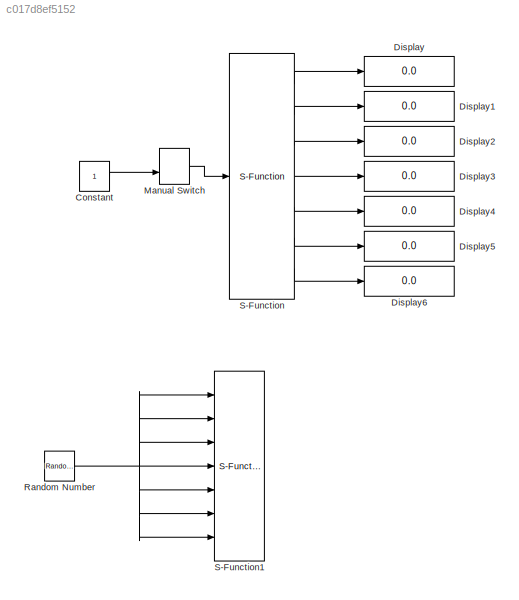
MODEL slx_c017d8ef5152
KIND model
CONFIG AbsTol = auto
CONFIG EnableMultiTasking = off
CONFIG FixedStep = 0.04
CONFIG MaxStep = auto
CONFIG MinStep = auto
CONFIG RelTol = 1e-3
CONFIG SampleTimeConstraint = Unconstrained
CONFIG Solver = ode4
CONFIG SolverName = ode4
CONFIG StartTime = 0.0
CONFIG StopTime = 50
BLOCK [Constant] Constant
BLOCK [Display] Display
  Decimation = 1
  Ports = [1]
BLOCK [Display] Display1
  Decimation = 1
  Ports = [1]
BLOCK [Display] Display2
  Decimation = 1
  Ports = [1]
BLOCK [Display] Display3
  Decimation = 1
  Ports = [1]
BLOCK [Display] Display4
  Decimation = 1
  Ports = [1]
BLOCK [Display] Display5
  Decimation = 1
  Ports = [1]
BLOCK [Display] Display6
  Decimation = 1
  Ports = [1]
BLOCK [ManualSwitch] Manual Switch
  CurrentSetting = 0
BLOCK [RandomNumber] Random Number
  Mean = 10
  Variance = 5
BLOCK [S-Function] S-Function
  EnableBusSupport = off
  FunctionName = AdsPara
  Parameters = [192 168 56 1 1 1] 851
  Ports = [1, 7]
  SFcnIsStateOwnerBlock = off
  SFunctionDeploymentMode = off
BLOCK [S-Function] S-Function1
  EnableBusSupport = off
  FunctionName = AdsWrite
  Ports = [7]
  SFcnIsStateOwnerBlock = off
  SFunctionDeploymentMode = off
LINE Constant:1 -> Manual Switch:2
LINE Manual Switch:1 -> S-Function:1
NET Random Number:1 -> S-Function1:1, S-Function1:2, S-Function1:3, S-Function1:4, S-Function1:5, S-Function1:6, S-Function1:7
LINE S-Function:1 -> Display:1
LINE S-Function:2 -> Display1:1
LINE S-Function:3 -> Display2:1
LINE S-Function:4 -> Display3:1
LINE S-Function:5 -> Display4:1
LINE S-Function:6 -> Display5:1
LINE S-Function:7 -> Display6:1
note: NET lines group one-source signal fan-out (src -> all destinations, sorted); 1:1 wires keep LINE
